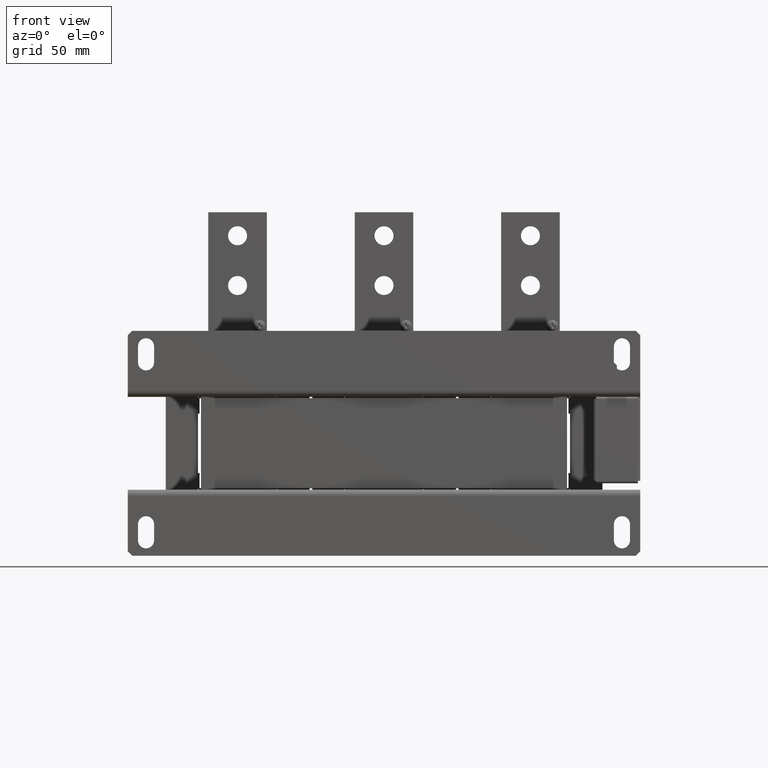
[diagram: clean part render]
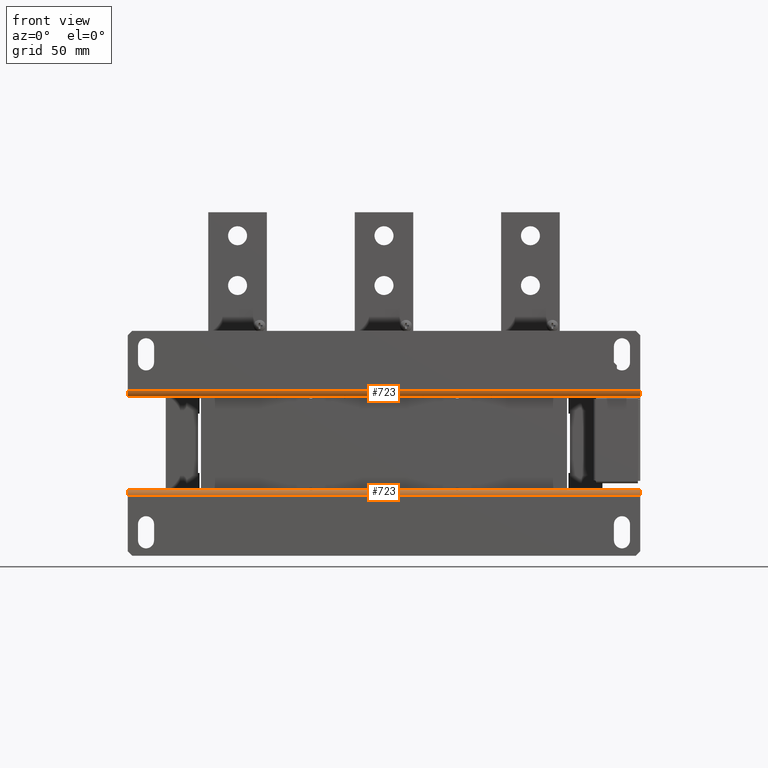
[diagram: same view with one multi-face feature highlighted, each face labeled with its STEP entity id]
A machine part, front view. The highlighted faces form ONE feature: a constant-radius fillet chain: 2 tangent blend faces with common blend radius 4 mm. The faces share edges in the B-rep.
Their STEP definitions:
[1] entity #723 (Cylinder):
#723 = ADVANCED_FACE ( 'NONE', ( #8838 ), #2624, .T. ) ;
#1031 = ORIENTED_EDGE ( 'NONE', *, *, #8822, .T. ) ;
#1614 = ORIENTED_EDGE ( 'NONE', *, *, #5992, .F. ) ;
#2624 = CYLINDRICAL_SURFACE ( 'NONE', #12604, 4.000000000000000000 ) ;
#2983 = CARTESIAN_POINT ( 'NONE',  ( -175.0000000000000300, -3.000000000000013800, -18.50000000000000400 ) ) ;
#4033 = ORIENTED_EDGE ( 'NONE', *, *, #19337, .F. ) ;
#5702 = EDGE_CURVE ( 'NONE', #11670, #15418, #26875, .T. ) ;
#5992 = EDGE_CURVE ( 'NONE', #13563, #11670, #17045, .T. ) ;
#6589 = DIRECTION ( 'NONE',  ( 1.000000000000000000, -0.0000000000000000000, -0.0000000000000000000 ) ) ;
#8286 = CARTESIAN_POINT ( 'NONE',  ( 174.9999999999999700, 0.9999999999999731300, -22.50000000000000400 ) ) ;
#8822 = EDGE_CURVE ( 'NONE', #21596, #15418, #13337, .T. ) ;
#8838 = FACE_OUTER_BOUND ( 'NONE', #11976, .T. ) ;
#8977 = CARTESIAN_POINT ( 'NONE',  ( -175.0000000000000300, -3.000000000000013800, -18.50000000000000400 ) ) ;
#9160 = CARTESIAN_POINT ( 'NONE',  ( 174.9999999999999700, -3.000000000000000000, -18.49999999999998900 ) ) ;
#9377 = AXIS2_PLACEMENT_3D ( 'NONE', #19224, #6589, #21317 ) ;
#11351 = DIRECTION ( 'NONE',  ( 1.000000000000000000, -0.0000000000000000000, -0.0000000000000000000 ) ) ;
#11670 = VERTEX_POINT ( 'NONE', #9160 ) ;
#11680 = DIRECTION ( 'NONE',  ( -1.000000000000000000, 0.0000000000000000000, 0.0000000000000000000 ) ) ;
#11976 = EDGE_LOOP ( 'NONE', ( #1614, #4033, #1031, #16809 ) ) ;
#11982 = CARTESIAN_POINT ( 'NONE',  ( 174.9999999999999700, 1.000000000000018400, -22.50000000000000400 ) ) ;
#12604 = AXIS2_PLACEMENT_3D ( 'NONE', #19695, #17605, #13306 ) ;
#13306 = DIRECTION ( 'NONE',  ( 0.0000000000000000000, -3.469446951953614200E-015, -1.000000000000000000 ) ) ;
#13337 = LINE ( 'NONE', #11982, #13520 ) ;
#13370 = CIRCLE ( 'NONE', #17969, 4.000000000000000000 ) ;
#13520 = VECTOR ( 'NONE', #22639, 1000.000000000000000 ) ;
#13563 = VERTEX_POINT ( 'NONE', #8977 ) ;
#15418 = VERTEX_POINT ( 'NONE', #8286 ) ;
#16809 = ORIENTED_EDGE ( 'NONE', *, *, #5702, .F. ) ;
#17045 = LINE ( 'NONE', #2983, #25219 ) ;
#17605 = DIRECTION ( 'NONE',  ( -1.000000000000000000, 0.0000000000000000000, 0.0000000000000000000 ) ) ;
#17969 = AXIS2_PLACEMENT_3D ( 'NONE', #24290, #11680, #26460 ) ;
#19224 = CARTESIAN_POINT ( 'NONE',  ( 174.9999999999999700, 0.9999999999999870100, -18.50000000000000400 ) ) ;
#19337 = EDGE_CURVE ( 'NONE', #21596, #13563, #13370, .T. ) ;
#19695 = CARTESIAN_POINT ( 'NONE',  ( -175.0000000000000300, 0.9999999999999870100, -18.50000000000000400 ) ) ;
#21317 = DIRECTION ( 'NONE',  ( 0.0000000000000000000, 0.0000000000000000000, 1.000000000000000000 ) ) ;
#21596 = VERTEX_POINT ( 'NONE', #24835 ) ;
#22639 = DIRECTION ( 'NONE',  ( 1.000000000000000000, 1.982541115402065300E-017, -6.878321229954414200E-032 ) ) ;
#24290 = CARTESIAN_POINT ( 'NONE',  ( -175.0000000000000300, 0.9999999999999870100, -18.50000000000000400 ) ) ;
#24835 = CARTESIAN_POINT ( 'NONE',  ( -175.0000000000000300, 1.000000000000011500, -22.50000000000000400 ) ) ;
#25219 = VECTOR ( 'NONE', #11351, 1000.000000000000000 ) ;
#26460 = DIRECTION ( 'NONE',  ( 0.0000000000000000000, 0.0000000000000000000, 1.000000000000000000 ) ) ;
#26875 = CIRCLE ( 'NONE', #9377, 4.000000000000000000 ) ;
[2] entity #723 (Cylinder):
#723 = ADVANCED_FACE ( 'NONE', ( #8838 ), #2624, .T. ) ;
#1031 = ORIENTED_EDGE ( 'NONE', *, *, #8822, .T. ) ;
#1614 = ORIENTED_EDGE ( 'NONE', *, *, #5992, .F. ) ;
#2624 = CYLINDRICAL_SURFACE ( 'NONE', #12604, 4.000000000000000000 ) ;
#2983 = CARTESIAN_POINT ( 'NONE',  ( -175.0000000000000300, -3.000000000000013800, -18.50000000000000400 ) ) ;
#4033 = ORIENTED_EDGE ( 'NONE', *, *, #19337, .F. ) ;
#5702 = EDGE_CURVE ( 'NONE', #11670, #15418, #26875, .T. ) ;
#5992 = EDGE_CURVE ( 'NONE', #13563, #11670, #17045, .T. ) ;
#6589 = DIRECTION ( 'NONE',  ( 1.000000000000000000, -0.0000000000000000000, -0.0000000000000000000 ) ) ;
#8286 = CARTESIAN_POINT ( 'NONE',  ( 174.9999999999999700, 0.9999999999999731300, -22.50000000000000400 ) ) ;
#8822 = EDGE_CURVE ( 'NONE', #21596, #15418, #13337, .T. ) ;
#8838 = FACE_OUTER_BOUND ( 'NONE', #11976, .T. ) ;
#8977 = CARTESIAN_POINT ( 'NONE',  ( -175.0000000000000300, -3.000000000000013800, -18.50000000000000400 ) ) ;
#9160 = CARTESIAN_POINT ( 'NONE',  ( 174.9999999999999700, -3.000000000000000000, -18.49999999999998900 ) ) ;
#9377 = AXIS2_PLACEMENT_3D ( 'NONE', #19224, #6589, #21317 ) ;
#11351 = DIRECTION ( 'NONE',  ( 1.000000000000000000, -0.0000000000000000000, -0.0000000000000000000 ) ) ;
#11670 = VERTEX_POINT ( 'NONE', #9160 ) ;
#11680 = DIRECTION ( 'NONE',  ( -1.000000000000000000, 0.0000000000000000000, 0.0000000000000000000 ) ) ;
#11976 = EDGE_LOOP ( 'NONE', ( #1614, #4033, #1031, #16809 ) ) ;
#11982 = CARTESIAN_POINT ( 'NONE',  ( 174.9999999999999700, 1.000000000000018400, -22.50000000000000400 ) ) ;
#12604 = AXIS2_PLACEMENT_3D ( 'NONE', #19695, #17605, #13306 ) ;
#13306 = DIRECTION ( 'NONE',  ( 0.0000000000000000000, -3.469446951953614200E-015, -1.000000000000000000 ) ) ;
#13337 = LINE ( 'NONE', #11982, #13520 ) ;
#13370 = CIRCLE ( 'NONE', #17969, 4.000000000000000000 ) ;
#13520 = VECTOR ( 'NONE', #22639, 1000.000000000000000 ) ;
#13563 = VERTEX_POINT ( 'NONE', #8977 ) ;
#15418 = VERTEX_POINT ( 'NONE', #8286 ) ;
#16809 = ORIENTED_EDGE ( 'NONE', *, *, #5702, .F. ) ;
#17045 = LINE ( 'NONE', #2983, #25219 ) ;
#17605 = DIRECTION ( 'NONE',  ( -1.000000000000000000, 0.0000000000000000000, 0.0000000000000000000 ) ) ;
#17969 = AXIS2_PLACEMENT_3D ( 'NONE', #24290, #11680, #26460 ) ;
#19224 = CARTESIAN_POINT ( 'NONE',  ( 174.9999999999999700, 0.9999999999999870100, -18.50000000000000400 ) ) ;
#19337 = EDGE_CURVE ( 'NONE', #21596, #13563, #13370, .T. ) ;
#19695 = CARTESIAN_POINT ( 'NONE',  ( -175.0000000000000300, 0.9999999999999870100, -18.50000000000000400 ) ) ;
#21317 = DIRECTION ( 'NONE',  ( 0.0000000000000000000, 0.0000000000000000000, 1.000000000000000000 ) ) ;
#21596 = VERTEX_POINT ( 'NONE', #24835 ) ;
#22639 = DIRECTION ( 'NONE',  ( 1.000000000000000000, 1.982541115402065300E-017, -6.878321229954414200E-032 ) ) ;
#24290 = CARTESIAN_POINT ( 'NONE',  ( -175.0000000000000300, 0.9999999999999870100, -18.50000000000000400 ) ) ;
#24835 = CARTESIAN_POINT ( 'NONE',  ( -175.0000000000000300, 1.000000000000011500, -22.50000000000000400 ) ) ;
#25219 = VECTOR ( 'NONE', #11351, 1000.000000000000000 ) ;
#26460 = DIRECTION ( 'NONE',  ( 0.0000000000000000000, 0.0000000000000000000, 1.000000000000000000 ) ) ;
#26875 = CIRCLE ( 'NONE', #9377, 4.000000000000000000 ) ;